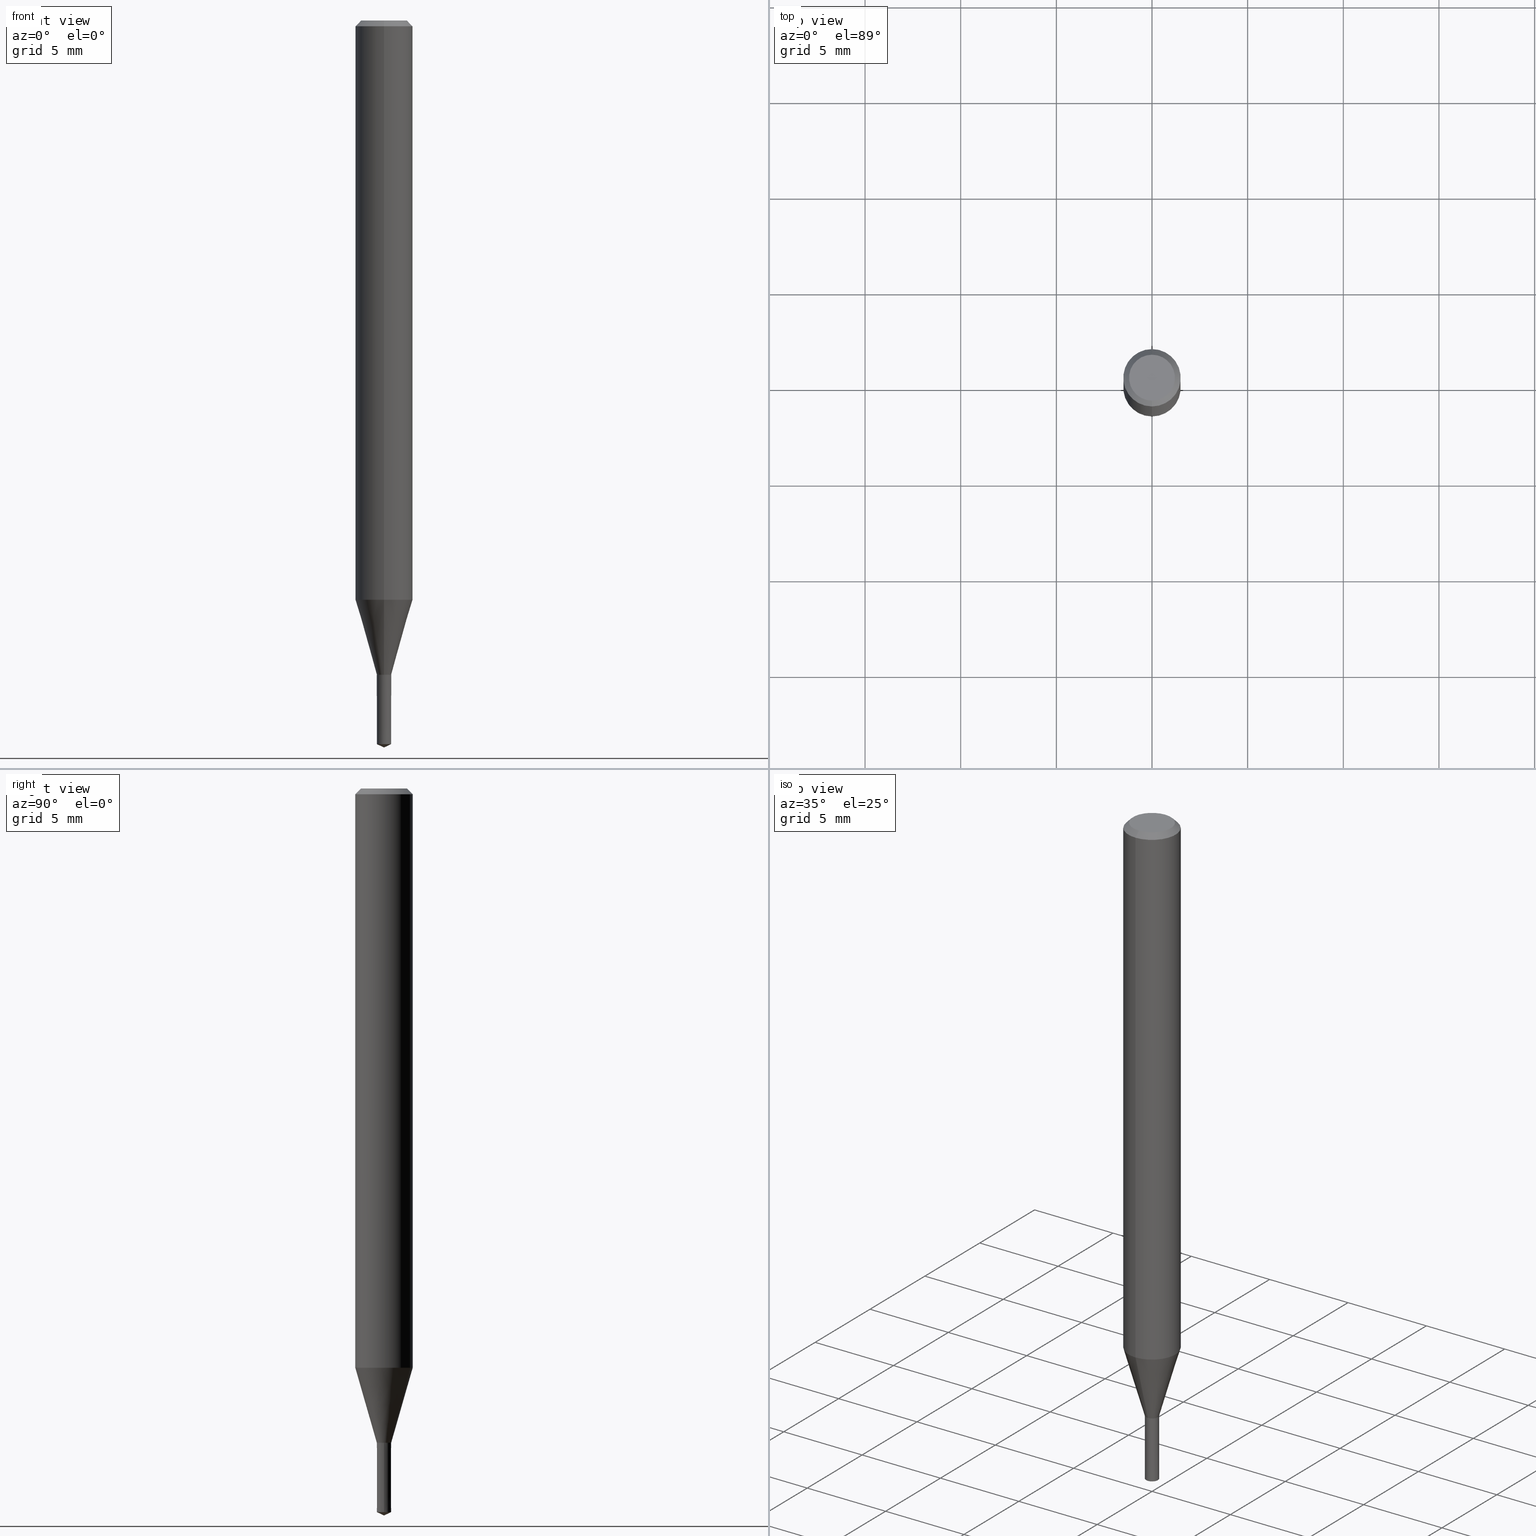
[diagram: canonical four-view strip — front | top / right | iso, engineering-drawing reading convention]
A machine part, canonical four-view strip (front | top / right | iso — engineering-drawing reading convention). The complete STEP part file that produces these views, byte-faithful:
ISO-10303-21;
HEADER;
FILE_DESCRIPTION(('no description'),'unknown implementation level');
FILE_NAME('UTDSX2075-038-Huellk.stp','  ',('CIMSOURCE GmbH'),('CADClick - KiM GmbH - www.kimweb.de'),'unknown preprocess','ACIS','unknown authorization');
FILE_SCHEMA(('automotive_design'));
ENDSEC;
DATA;
#1=MECHANICAL_DESIGN_GEOMETRIC_PRESENTATION_REPRESENTATION(' ',(#14,#15,#16,#17,#18,#19,#20,#21,#22,#23,#24,#25,#26,#27,#28,#29,#30,#31,#32,#33,#34,#35,#36,#37,#38,#39,#40,#41,#42,#43,#44,#45,#46,#47,#48,#49,#50,#51,#52,#53,#54,#55,#56,#57,#58,#59,#60,#61,#62,#63,#64,#65,#66,#67,#68,#69,#70,#71),#10);
#2=PRODUCT_DEFINITION_CONTEXT('',#72,'design');
#3=APPLICATION_PROTOCOL_DEFINITION('INTERNATIONAL STANDARD','automotive_design',1994,#72);
#4=PRODUCT_CATEGORY_RELATIONSHIP('NONE','NONE',#73,#74);
#5=SHAPE_DEFINITION_REPRESENTATION(#75,#76);
#6=PRODUCT_DEFINITION_CONTEXT('',#77,'design');
#7=APPLICATION_PROTOCOL_DEFINITION('INTERNATIONAL STANDARD','automotive_design',1994,#77);
#8=PRODUCT_CATEGORY_RELATIONSHIP('NONE','NONE',#78,#79);
#9=SHAPE_DEFINITION_REPRESENTATION(#80,#81);
#10= (GEOMETRIC_REPRESENTATION_CONTEXT(3)GLOBAL_UNCERTAINTY_ASSIGNED_CONTEXT((#84))GLOBAL_UNIT_ASSIGNED_CONTEXT((#86,#87,#88))REPRESENTATION_CONTEXT('NONE','WORKSPACE'));
#14=STYLED_ITEM('',(#90),#91);
#15=STYLED_ITEM('',(#92),#93);
#16=STYLED_ITEM('',(#94),#95);
#17=STYLED_ITEM('',(#96),#97);
#18=STYLED_ITEM('',(#98),#99);
#19=STYLED_ITEM('',(#100),#101);
#20=STYLED_ITEM('',(#102),#103);
#21=STYLED_ITEM('',(#104),#105);
#22=STYLED_ITEM('',(#106),#107);
#23=STYLED_ITEM('',(#108),#109);
#24=STYLED_ITEM('',(#110),#111);
#25=STYLED_ITEM('',(#112),#113);
#26=STYLED_ITEM('',(#114),#115);
#27=STYLED_ITEM('',(#116),#117);
#28=STYLED_ITEM('',(#118),#119);
#29=STYLED_ITEM('',(#120),#121);
#30=STYLED_ITEM('',(#122),#123);
#31=STYLED_ITEM('',(#124),#125);
#32=STYLED_ITEM('',(#126),#127);
#33=STYLED_ITEM('',(#128),#129);
#34=STYLED_ITEM('',(#130),#131);
#35=STYLED_ITEM('',(#132),#133);
#36=STYLED_ITEM('',(#134),#135);
#37=STYLED_ITEM('',(#136),#137);
#38=STYLED_ITEM('',(#138),#139);
#39=STYLED_ITEM('',(#140),#141);
#40=STYLED_ITEM('',(#142),#143);
#41=STYLED_ITEM('',(#144),#145);
#42=STYLED_ITEM('',(#146),#147);
#43=STYLED_ITEM('',(#148),#149);
#44=STYLED_ITEM('',(#150),#151);
#45=STYLED_ITEM('',(#152),#153);
#46=STYLED_ITEM('',(#154),#155);
#47=STYLED_ITEM('',(#156),#157);
#48=STYLED_ITEM('',(#158),#159);
#49=STYLED_ITEM('',(#160),#161);
#50=STYLED_ITEM('',(#162),#163);
#51=STYLED_ITEM('',(#164),#165);
#52=STYLED_ITEM('',(#166),#167);
#53=STYLED_ITEM('',(#168),#169);
#54=STYLED_ITEM('',(#170),#171);
#55=STYLED_ITEM('',(#172),#173);
#56=STYLED_ITEM('',(#174),#175);
#57=STYLED_ITEM('',(#176),#177);
#58=STYLED_ITEM('',(#178),#179);
#59=STYLED_ITEM('',(#180),#181);
#60=STYLED_ITEM('',(#182),#183);
#61=STYLED_ITEM('',(#184),#185);
#62=STYLED_ITEM('',(#186),#187);
#63=STYLED_ITEM('',(#188),#189);
#64=STYLED_ITEM('',(#190),#191);
#65=STYLED_ITEM('',(#192),#193);
#66=STYLED_ITEM('',(#194),#195);
#67=STYLED_ITEM('',(#196),#197);
#68=STYLED_ITEM('',(#198),#199);
#69=STYLED_ITEM('',(#200),#201);
#70=STYLED_ITEM('',(#202),#203);
#71=STYLED_ITEM('',(#204),#205);
#72=APPLICATION_CONTEXT(' ');
#73=PRODUCT_CATEGORY('part','NONE');
#74=PRODUCT_RELATED_PRODUCT_CATEGORY('detail',' ',(#206));
#75=PRODUCT_DEFINITION_SHAPE('NONE','NONE',#207);
#76=ADVANCED_BREP_SHAPE_REPRESENTATION('1',(#155,#208),#10);
#77=APPLICATION_CONTEXT(' ');
#78=PRODUCT_CATEGORY('part','NONE');
#79=PRODUCT_RELATED_PRODUCT_CATEGORY('detail',' ',(#209));
#80=PRODUCT_DEFINITION_SHAPE('NONE','NONE',#210);
#81=ADVANCED_BREP_SHAPE_REPRESENTATION('2',(#97,#211),#10);
#84=UNCERTAINTY_MEASURE_WITH_UNIT(LENGTH_MEASURE(1.0E-006),#86,'','');
#86= (CONVERSION_BASED_UNIT('MILLIMETRE',#214)LENGTH_UNIT()NAMED_UNIT(#217));
#87= (NAMED_UNIT(#219)PLANE_ANGLE_UNIT()SI_UNIT($,.RADIAN.));
#88= (NAMED_UNIT(#219)SOLID_ANGLE_UNIT()SI_UNIT($,.STERADIAN.));
#90=PRESENTATION_STYLE_ASSIGNMENT((#225));
#91=ADVANCED_FACE('',(#226),#227,.T.);
#92=PRESENTATION_STYLE_ASSIGNMENT((#228));
#93=ADVANCED_FACE('',(#229),#230,.T.);
#94=PRESENTATION_STYLE_ASSIGNMENT((#231));
#95=EDGE_CURVE('',#197,#195,#232,.T.);
#96=PRESENTATION_STYLE_ASSIGNMENT((#233));
#97=MANIFOLD_SOLID_BREP('2',#234);
#98=PRESENTATION_STYLE_ASSIGNMENT((#235));
#99=EDGE_CURVE('',#103,#169,#236,.T.);
#100=PRESENTATION_STYLE_ASSIGNMENT((#237));
#101=ADVANCED_FACE('',(#238),#239,.T.);
#102=PRESENTATION_STYLE_ASSIGNMENT((#240));
#103=VERTEX_POINT('',#241);
#104=PRESENTATION_STYLE_ASSIGNMENT((#242));
#105=ADVANCED_FACE('',(#243),#244,.T.);
#106=PRESENTATION_STYLE_ASSIGNMENT((#245));
#107=EDGE_CURVE('',#191,#127,#246,.T.);
#108=PRESENTATION_STYLE_ASSIGNMENT((#247));
#109=EDGE_CURVE('',#185,#145,#248,.T.);
#110=PRESENTATION_STYLE_ASSIGNMENT((#249));
#111=EDGE_CURVE('',#119,#131,#250,.T.);
#112=PRESENTATION_STYLE_ASSIGNMENT((#251));
#113=VERTEX_POINT('',#252);
#114=PRESENTATION_STYLE_ASSIGNMENT((#253));
#115=ADVANCED_FACE('',(#254),#255,.T.);
#116=PRESENTATION_STYLE_ASSIGNMENT((#256));
#117=EDGE_CURVE('',#131,#191,#257,.T.);
#118=PRESENTATION_STYLE_ASSIGNMENT((#258));
#119=VERTEX_POINT('',#259);
#120=PRESENTATION_STYLE_ASSIGNMENT((#260));
#121=EDGE_CURVE('',#197,#113,#261,.T.);
#122=PRESENTATION_STYLE_ASSIGNMENT((#262));
#123=VERTEX_POINT('',#263);
#124=PRESENTATION_STYLE_ASSIGNMENT((#264));
#125=EDGE_CURVE('',#127,#119,#265,.T.);
#126=PRESENTATION_STYLE_ASSIGNMENT((#266));
#127=VERTEX_POINT('',#267);
#128=PRESENTATION_STYLE_ASSIGNMENT((#268));
#129=EDGE_CURVE('',#123,#165,#269,.T.);
#130=PRESENTATION_STYLE_ASSIGNMENT((#270));
#131=VERTEX_POINT('',#271);
#132=PRESENTATION_STYLE_ASSIGNMENT((#272));
#133=ADVANCED_FACE('',(#273),#274,.T.);
#134=PRESENTATION_STYLE_ASSIGNMENT((#275));
#135=EDGE_CURVE('',#145,#197,#276,.T.);
#136=PRESENTATION_STYLE_ASSIGNMENT((#277));
#137=ADVANCED_FACE('',(#278),#279,.T.);
#138=PRESENTATION_STYLE_ASSIGNMENT((#280));
#139=ADVANCED_FACE('',(#281),#282,.T.);
#140=PRESENTATION_STYLE_ASSIGNMENT((#283));
#141=VERTEX_POINT('',#284);
#142=PRESENTATION_STYLE_ASSIGNMENT((#285));
#143=EDGE_CURVE('',#169,#103,#286,.T.);
#144=PRESENTATION_STYLE_ASSIGNMENT((#287));
#145=VERTEX_POINT('',#288);
#146=PRESENTATION_STYLE_ASSIGNMENT((#289));
#147=ADVANCED_FACE('',(#290),#291,.T.);
#148=PRESENTATION_STYLE_ASSIGNMENT((#292));
#149=ADVANCED_FACE('',(#293),#294,.T.);
#150=PRESENTATION_STYLE_ASSIGNMENT((#295));
#151=ADVANCED_FACE('',(#296),#297,.T.);
#152=PRESENTATION_STYLE_ASSIGNMENT((#298));
#153=EDGE_CURVE('',#103,#119,#299,.T.);
#154=PRESENTATION_STYLE_ASSIGNMENT((#300));
#155=MANIFOLD_SOLID_BREP('1',#301);
#156=PRESENTATION_STYLE_ASSIGNMENT((#302));
#157=EDGE_CURVE('',#191,#131,#303,.T.);
#158=PRESENTATION_STYLE_ASSIGNMENT((#304));
#159=EDGE_CURVE('',#127,#169,#305,.T.);
#160=PRESENTATION_STYLE_ASSIGNMENT((#306));
#161=EDGE_CURVE('',#203,#141,#307,.T.);
#162=PRESENTATION_STYLE_ASSIGNMENT((#308));
#163=EDGE_CURVE('',#123,#203,#309,.T.);
#164=PRESENTATION_STYLE_ASSIGNMENT((#310));
#165=VERTEX_POINT('',#311);
#166=PRESENTATION_STYLE_ASSIGNMENT((#312));
#167=EDGE_CURVE('',#165,#123,#313,.T.);
#168=PRESENTATION_STYLE_ASSIGNMENT((#314));
#169=VERTEX_POINT('',#315);
#170=PRESENTATION_STYLE_ASSIGNMENT((#316));
#171=EDGE_CURVE('',#145,#185,#317,.T.);
#172=PRESENTATION_STYLE_ASSIGNMENT((#318));
#173=EDGE_CURVE('',#113,#195,#319,.T.);
#174=PRESENTATION_STYLE_ASSIGNMENT((#320));
#175=EDGE_CURVE('',#195,#197,#321,.T.);
#176=PRESENTATION_STYLE_ASSIGNMENT((#322));
#177=EDGE_CURVE('',#203,#103,#323,.T.);
#178=PRESENTATION_STYLE_ASSIGNMENT((#324));
#179=ADVANCED_FACE('',(#325),#326,.T.);
#180=PRESENTATION_STYLE_ASSIGNMENT((#327));
#181=EDGE_CURVE('',#119,#127,#328,.T.);
#182=PRESENTATION_STYLE_ASSIGNMENT((#329));
#183=ADVANCED_FACE('',(#330),#331,.T.);
#184=PRESENTATION_STYLE_ASSIGNMENT((#332));
#185=VERTEX_POINT('',#333);
#186=PRESENTATION_STYLE_ASSIGNMENT((#334));
#187=EDGE_CURVE('',#169,#141,#335,.T.);
#188=PRESENTATION_STYLE_ASSIGNMENT((#336));
#189=EDGE_CURVE('',#141,#165,#337,.T.);
#190=PRESENTATION_STYLE_ASSIGNMENT((#338));
#191=VERTEX_POINT('',#339);
#192=PRESENTATION_STYLE_ASSIGNMENT((#340));
#193=EDGE_CURVE('',#141,#203,#341,.T.);
#194=PRESENTATION_STYLE_ASSIGNMENT((#342));
#195=VERTEX_POINT('',#343);
#196=PRESENTATION_STYLE_ASSIGNMENT((#344));
#197=VERTEX_POINT('',#345);
#198=PRESENTATION_STYLE_ASSIGNMENT((#346));
#199=ADVANCED_FACE('',(#347),#348,.T.);
#200=PRESENTATION_STYLE_ASSIGNMENT((#349));
#201=ADVANCED_FACE('',(#350),#351,.T.);
#202=PRESENTATION_STYLE_ASSIGNMENT((#352));
#203=VERTEX_POINT('',#353);
#204=PRESENTATION_STYLE_ASSIGNMENT((#354));
#205=EDGE_CURVE('',#195,#185,#355,.T.);
#206=PRODUCT('1','1','PART-1-DESC',(#356));
#207=PRODUCT_DEFINITION('NONE','NONE',#357,#2);
#208=AXIS2_PLACEMENT_3D('',#358,#359,#360);
#209=PRODUCT('2','2','PART-2-DESC',(#361));
#210=PRODUCT_DEFINITION('NONE','NONE',#362,#6);
#211=AXIS2_PLACEMENT_3D('',#363,#364,#365);
#214=LENGTH_MEASURE_WITH_UNIT(LENGTH_MEASURE(1.0),#366);
#217=DIMENSIONAL_EXPONENTS(1.0,0.0,0.0,0.0,0.0,0.0,0.0);
#219=DIMENSIONAL_EXPONENTS(0.0,0.0,0.0,0.0,0.0,0.0,0.0);
#225=SURFACE_STYLE_USAGE(.BOTH.,#367);
#226=FACE_OUTER_BOUND('',#368,.T.);
#227=CYLINDRICAL_SURFACE('',#369,1.5);
#228=SURFACE_STYLE_USAGE(.BOTH.,#370);
#229=FACE_OUTER_BOUND('',#371,.T.);
#230=CONICAL_SURFACE('',#372,0.1875,1.1344640177568);
#231=CURVE_STYLE('',#373,POSITIVE_LENGTH_MEASURE(1.0E-006),#374);
#232=CIRCLE('',#375,0.375);
#233=SURFACE_STYLE_USAGE(.BOTH.,#376);
#234=CLOSED_SHELL('',(#151,#147,#149,#137,#93));
#235=CURVE_STYLE('',#377,POSITIVE_LENGTH_MEASURE(1.0E-006),#378);
#236=CIRCLE('',#379,1.5);
#237=SURFACE_STYLE_USAGE(.BOTH.,#380);
#238=FACE_OUTER_BOUND('',#381,.T.);
#239=CONICAL_SURFACE('',#382,0.9375,0.279334235816107);
#240=POINT_STYLE(' ',#383,POSITIVE_LENGTH_MEASURE(1.0E-006),#384);
#241=CARTESIAN_POINT('',(0.0,1.5,-30.277));
#242=SURFACE_STYLE_USAGE(.BOTH.,#385);
#243=FACE_OUTER_BOUND('',#386,.T.);
#244=CYLINDRICAL_SURFACE('',#387,1.5);
#245=CURVE_STYLE('',#388,POSITIVE_LENGTH_MEASURE(1.0E-006),#389);
#246=LINE('',#390,#391);
#247=CURVE_STYLE('',#392,POSITIVE_LENGTH_MEASURE(1.0E-006),#393);
#248=CIRCLE('',#394,0.376);
#249=CURVE_STYLE('',#395,POSITIVE_LENGTH_MEASURE(1.0E-006),#396);
#250=LINE('',#397,#398);
#251=POINT_STYLE(' ',#399,POSITIVE_LENGTH_MEASURE(1.0E-006),#400);
#252=CARTESIAN_POINT('',(0.0,0.0,-38.0));
#253=SURFACE_STYLE_USAGE(.BOTH.,#401);
#254=FACE_OUTER_BOUND('',#402,.T.);
#255=PLANE('',#403);
#256=CURVE_STYLE('',#404,POSITIVE_LENGTH_MEASURE(1.0E-006),#405);
#257=CIRCLE('',#406,0.3755);
#258=POINT_STYLE(' ',#407,POSITIVE_LENGTH_MEASURE(1.0E-006),#408);
#259=CARTESIAN_POINT('',(0.0,0.375,-34.1991339745962));
#260=CURVE_STYLE('',#409,POSITIVE_LENGTH_MEASURE(1.0E-006),#410);
#261=LINE('',#411,#412);
#262=POINT_STYLE(' ',#413,POSITIVE_LENGTH_MEASURE(1.0E-006),#414);
#263=CARTESIAN_POINT('',(0.0,1.2,0.0));
#264=CURVE_STYLE('',#415,POSITIVE_LENGTH_MEASURE(1.0E-006),#416);
#265=CIRCLE('',#417,0.375);
#266=POINT_STYLE(' ',#418,POSITIVE_LENGTH_MEASURE(1.0E-006),#419);
#267=CARTESIAN_POINT('',(4.59227382683391E-017,-0.375,-34.1991339745962));
#268=CURVE_STYLE('',#420,POSITIVE_LENGTH_MEASURE(1.0E-006),#421);
#269=CIRCLE('',#422,1.2);
#270=POINT_STYLE(' ',#423,POSITIVE_LENGTH_MEASURE(1.0E-006),#424);
#271=CARTESIAN_POINT('',(0.0,0.3755,-34.2));
#272=SURFACE_STYLE_USAGE(.BOTH.,#425);
#273=FACE_OUTER_BOUND('',#426,.T.);
#274=CONICAL_SURFACE('',#427,0.37525,0.523598775598408);
#275=CURVE_STYLE('',#428,POSITIVE_LENGTH_MEASURE(1.0E-006),#429);
#276=LINE('',#430,#431);
#277=SURFACE_STYLE_USAGE(.BOTH.,#432);
#278=FACE_OUTER_BOUND('',#433,.T.);
#279=CONICAL_SURFACE('',#434,0.3755,0.000275851817022106);
#280=SURFACE_STYLE_USAGE(.BOTH.,#435);
#281=FACE_OUTER_BOUND('',#436,.T.);
#282=CONICAL_SURFACE('',#437,1.35,0.785398163397447);
#283=POINT_STYLE(' ',#438,POSITIVE_LENGTH_MEASURE(1.0E-006),#439);
#284=CARTESIAN_POINT('',(1.83690953073357E-016,-1.5,-0.300000000000001));
#285=CURVE_STYLE('',#440,POSITIVE_LENGTH_MEASURE(1.0E-006),#441);
#286=CIRCLE('',#442,1.5);
#287=POINT_STYLE(' ',#443,POSITIVE_LENGTH_MEASURE(1.0E-006),#444);
#288=CARTESIAN_POINT('',(-0.376,0.0,-34.2));
#289=SURFACE_STYLE_USAGE(.BOTH.,#445);
#290=FACE_OUTER_BOUND('',#446,.T.);
#291=CONICAL_SURFACE('',#447,0.3755,0.000275851817022106);
#292=SURFACE_STYLE_USAGE(.BOTH.,#448);
#293=FACE_OUTER_BOUND('',#449,.T.);
#294=PLANE('',#450);
#295=SURFACE_STYLE_USAGE(.BOTH.,#451);
#296=FACE_OUTER_BOUND('',#452,.T.);
#297=CONICAL_SURFACE('',#453,0.1875,1.1344640177568);
#298=CURVE_STYLE('',#454,POSITIVE_LENGTH_MEASURE(1.0E-006),#455);
#299=LINE('',#456,#457);
#300=SURFACE_STYLE_USAGE(.BOTH.,#458);
#301=CLOSED_SHELL('',(#179,#183,#105,#199,#201,#139,#91,#101,#133,#115));
#302=CURVE_STYLE('',#459,POSITIVE_LENGTH_MEASURE(1.0E-006),#460);
#303=CIRCLE('',#461,0.3755);
#304=CURVE_STYLE('',#462,POSITIVE_LENGTH_MEASURE(1.0E-006),#463);
#305=LINE('',#464,#465);
#306=CURVE_STYLE('',#466,POSITIVE_LENGTH_MEASURE(1.0E-006),#467);
#307=CIRCLE('',#468,1.5);
#308=CURVE_STYLE('',#469,POSITIVE_LENGTH_MEASURE(1.0E-006),#470);
#309=LINE('',#471,#472);
#310=POINT_STYLE(' ',#473,POSITIVE_LENGTH_MEASURE(1.0E-006),#474);
#311=CARTESIAN_POINT('',(1.46952762458685E-016,-1.2,0.0));
#312=CURVE_STYLE('',#475,POSITIVE_LENGTH_MEASURE(1.0E-006),#476);
#313=CIRCLE('',#477,1.2);
#314=POINT_STYLE(' ',#478,POSITIVE_LENGTH_MEASURE(1.0E-006),#479);
#315=CARTESIAN_POINT('',(1.83690953073357E-016,-1.5,-30.277));
#316=CURVE_STYLE('',#480,POSITIVE_LENGTH_MEASURE(1.0E-006),#481);
#317=CIRCLE('',#482,0.376);
#318=CURVE_STYLE('',#483,POSITIVE_LENGTH_MEASURE(1.0E-006),#484);
#319=LINE('',#485,#486);
#320=CURVE_STYLE('',#487,POSITIVE_LENGTH_MEASURE(1.0E-006),#488);
#321=CIRCLE('',#489,0.375);
#322=CURVE_STYLE('',#490,POSITIVE_LENGTH_MEASURE(1.0E-006),#491);
#323=LINE('',#492,#493);
#324=SURFACE_STYLE_USAGE(.BOTH.,#494);
#325=FACE_OUTER_BOUND('',#495,.T.);
#326=CONICAL_SURFACE('',#496,0.37525,0.523598775598408);
#327=CURVE_STYLE('',#497,POSITIVE_LENGTH_MEASURE(1.0E-006),#498);
#328=CIRCLE('',#499,0.375);
#329=SURFACE_STYLE_USAGE(.BOTH.,#500);
#330=FACE_OUTER_BOUND('',#501,.T.);
#331=CONICAL_SURFACE('',#502,0.9375,0.279334235816107);
#332=POINT_STYLE(' ',#503,POSITIVE_LENGTH_MEASURE(1.0E-006),#504);
#333=CARTESIAN_POINT('',(0.376,4.60451989037214E-017,-34.2));
#334=CURVE_STYLE('',#505,POSITIVE_LENGTH_MEASURE(1.0E-006),#506);
#335=LINE('',#507,#508);
#336=CURVE_STYLE('',#509,POSITIVE_LENGTH_MEASURE(1.0E-006),#510);
#337=LINE('',#511,#512);
#338=POINT_STYLE(' ',#513,POSITIVE_LENGTH_MEASURE(1.0E-006),#514);
#339=CARTESIAN_POINT('',(4.59839685860303E-017,-0.3755,-34.2));
#340=CURVE_STYLE('',#515,POSITIVE_LENGTH_MEASURE(1.0E-006),#516);
#341=CIRCLE('',#517,1.5);
#342=POINT_STYLE(' ',#518,POSITIVE_LENGTH_MEASURE(1.0E-006),#519);
#343=CARTESIAN_POINT('',(0.375,4.59227382683391E-017,-37.82513463));
#344=POINT_STYLE(' ',#520,POSITIVE_LENGTH_MEASURE(1.0E-006),#521);
#345=CARTESIAN_POINT('',(-0.375,0.0,-37.82513463));
#346=SURFACE_STYLE_USAGE(.BOTH.,#522);
#347=FACE_OUTER_BOUND('',#523,.T.);
#348=CONICAL_SURFACE('',#524,1.35,0.785398163397447);
#349=SURFACE_STYLE_USAGE(.BOTH.,#525);
#350=FACE_OUTER_BOUND('',#526,.T.);
#351=PLANE('',#527);
#352=POINT_STYLE(' ',#528,POSITIVE_LENGTH_MEASURE(1.0E-006),#529);
#353=CARTESIAN_POINT('',(0.0,1.5,-0.300000000000001));
#354=CURVE_STYLE('',#530,POSITIVE_LENGTH_MEASURE(1.0E-006),#531);
#355=LINE('',#532,#533);
#356=PRODUCT_CONTEXT('',#72,'mechanical');
#357=PRODUCT_DEFINITION_FORMATION_WITH_SPECIFIED_SOURCE(' ','NONE',#206,.NOT_KNOWN.);
#358=CARTESIAN_POINT('',(0.0,0.0,0.0));
#359=DIRECTION('',(0.0,0.0,1.0));
#360=DIRECTION('',(1.0,0.0,0.0));
#361=PRODUCT_CONTEXT('',#77,'mechanical');
#362=PRODUCT_DEFINITION_FORMATION_WITH_SPECIFIED_SOURCE(' ','NONE',#209,.NOT_KNOWN.);
#363=CARTESIAN_POINT('',(0.0,0.0,0.0));
#364=DIRECTION('',(0.0,0.0,1.0));
#365=DIRECTION('',(1.0,0.0,0.0));
#366= (NAMED_UNIT(#217)LENGTH_UNIT()SI_UNIT(.MILLI.,.METRE.));
#367=SURFACE_SIDE_STYLE('',(#535));
#368=EDGE_LOOP('',(#536,#537,#538,#539));
#369=AXIS2_PLACEMENT_3D('',#540,#541,#542);
#370=SURFACE_SIDE_STYLE('',(#543));
#371=EDGE_LOOP('',(#544,#545,#546));
#372=AXIS2_PLACEMENT_3D('',#547,#548,#549);
#373=DRAUGHTING_PRE_DEFINED_CURVE_FONT('continuous');
#374=COLOUR_RGB('',0.800000011920929,0.800000011920929,0.800000011920929);
#375=AXIS2_PLACEMENT_3D('',#550,#551,#552);
#376=SURFACE_SIDE_STYLE('',(#553));
#377=DRAUGHTING_PRE_DEFINED_CURVE_FONT('continuous');
#378=COLOUR_RGB('',0.498039215803146,0.498039215803146,0.498039215803146);
#379=AXIS2_PLACEMENT_3D('',#554,#555,#556);
#380=SURFACE_SIDE_STYLE('',(#557));
#381=EDGE_LOOP('',(#558,#559,#560,#561));
#382=AXIS2_PLACEMENT_3D('',#562,#563,#564);
#383=PRE_DEFINED_MARKER('');
#384=COLOUR_RGB('',0.498039215803146,0.498039215803146,0.498039215803146);
#385=SURFACE_SIDE_STYLE('',(#565));
#386=EDGE_LOOP('',(#566,#567,#568,#569));
#387=AXIS2_PLACEMENT_3D('',#570,#571,#572);
#388=DRAUGHTING_PRE_DEFINED_CURVE_FONT('continuous');
#389=COLOUR_RGB('',0.498039215803146,0.498039215803146,0.498039215803146);
#390=CARTESIAN_POINT('',(4.59533534271847E-017,-0.37525,-34.1995669872981));
#391=VECTOR('',#573,1.0);
#392=DRAUGHTING_PRE_DEFINED_CURVE_FONT('continuous');
#393=COLOUR_RGB('',0.800000011920929,0.800000011920929,0.800000011920929);
#394=AXIS2_PLACEMENT_3D('',#574,#575,#576);
#395=DRAUGHTING_PRE_DEFINED_CURVE_FONT('continuous');
#396=COLOUR_RGB('',0.498039215803146,0.498039215803146,0.498039215803146);
#397=CARTESIAN_POINT('',(-4.59533534271847E-017,0.37525,-34.1995669872981));
#398=VECTOR('',#577,1.0);
#399=PRE_DEFINED_MARKER('');
#400=COLOUR_RGB('',0.800000011920929,0.800000011920929,0.800000011920929);
#401=SURFACE_SIDE_STYLE('',(#578));
#402=EDGE_LOOP('',(#579,#580));
#403=AXIS2_PLACEMENT_3D('',#581,#582,#583);
#404=DRAUGHTING_PRE_DEFINED_CURVE_FONT('continuous');
#405=COLOUR_RGB('',0.498039215803146,0.498039215803146,0.498039215803146);
#406=AXIS2_PLACEMENT_3D('',#584,#585,#586);
#407=PRE_DEFINED_MARKER('');
#408=COLOUR_RGB('',0.498039215803146,0.498039215803146,0.498039215803146);
#409=DRAUGHTING_PRE_DEFINED_CURVE_FONT('continuous');
#410=COLOUR_RGB('',0.800000011920929,0.800000011920929,0.800000011920929);
#411=CARTESIAN_POINT('',(-0.1875,-2.29613691341696E-017,-37.912567315));
#412=VECTOR('',#587,1.0);
#413=PRE_DEFINED_MARKER('');
#414=COLOUR_RGB('',0.498039215803146,0.498039215803146,0.498039215803146);
#415=DRAUGHTING_PRE_DEFINED_CURVE_FONT('continuous');
#416=COLOUR_RGB('',0.498039215803146,0.498039215803146,0.498039215803146);
#417=AXIS2_PLACEMENT_3D('',#588,#589,#590);
#418=PRE_DEFINED_MARKER('');
#419=COLOUR_RGB('',0.498039215803146,0.498039215803146,0.498039215803146);
#420=DRAUGHTING_PRE_DEFINED_CURVE_FONT('continuous');
#421=COLOUR_RGB('',0.498039215803146,0.498039215803146,0.498039215803146);
#422=AXIS2_PLACEMENT_3D('',#591,#592,#593);
#423=PRE_DEFINED_MARKER('');
#424=COLOUR_RGB('',0.498039215803146,0.498039215803146,0.498039215803146);
#425=SURFACE_SIDE_STYLE('',(#594));
#426=EDGE_LOOP('',(#595,#596,#597,#598));
#427=AXIS2_PLACEMENT_3D('',#599,#600,#601);
#428=DRAUGHTING_PRE_DEFINED_CURVE_FONT('continuous');
#429=COLOUR_RGB('',0.800000011920929,0.800000011920929,0.800000011920929);
#430=CARTESIAN_POINT('',(-0.3755,-4.59839685860302E-017,-36.012567315));
#431=VECTOR('',#602,1.0);
#432=SURFACE_SIDE_STYLE('',(#603));
#433=EDGE_LOOP('',(#604,#605,#606,#607));
#434=AXIS2_PLACEMENT_3D('',#608,#609,#610);
#435=SURFACE_SIDE_STYLE('',(#611));
#436=EDGE_LOOP('',(#612,#613,#614,#615));
#437=AXIS2_PLACEMENT_3D('',#616,#617,#618);
#438=PRE_DEFINED_MARKER('');
#439=COLOUR_RGB('',0.498039215803146,0.498039215803146,0.498039215803146);
#440=DRAUGHTING_PRE_DEFINED_CURVE_FONT('continuous');
#441=COLOUR_RGB('',0.498039215803146,0.498039215803146,0.498039215803146);
#442=AXIS2_PLACEMENT_3D('',#619,#620,#621);
#443=PRE_DEFINED_MARKER('');
#444=COLOUR_RGB('',0.800000011920929,0.800000011920929,0.800000011920929);
#445=SURFACE_SIDE_STYLE('',(#622));
#446=EDGE_LOOP('',(#623,#624,#625,#626));
#447=AXIS2_PLACEMENT_3D('',#627,#628,#629);
#448=SURFACE_SIDE_STYLE('',(#630));
#449=EDGE_LOOP('',(#631,#632));
#450=AXIS2_PLACEMENT_3D('',#633,#634,#635);
#451=SURFACE_SIDE_STYLE('',(#636));
#452=EDGE_LOOP('',(#637,#638,#639));
#453=AXIS2_PLACEMENT_3D('',#640,#641,#642);
#454=DRAUGHTING_PRE_DEFINED_CURVE_FONT('continuous');
#455=COLOUR_RGB('',0.498039215803146,0.498039215803146,0.498039215803146);
#456=CARTESIAN_POINT('',(-1.14806845670848E-016,0.9375,-32.2380669872981));
#457=VECTOR('',#643,1.0);
#458=SURFACE_SIDE_STYLE('',(#644));
#459=DRAUGHTING_PRE_DEFINED_CURVE_FONT('continuous');
#460=COLOUR_RGB('',0.498039215803146,0.498039215803146,0.498039215803146);
#461=AXIS2_PLACEMENT_3D('',#645,#646,#647);
#462=DRAUGHTING_PRE_DEFINED_CURVE_FONT('continuous');
#463=COLOUR_RGB('',0.498039215803146,0.498039215803146,0.498039215803146);
#464=CARTESIAN_POINT('',(1.14806845670848E-016,-0.9375,-32.2380669872981));
#465=VECTOR('',#648,1.0);
#466=DRAUGHTING_PRE_DEFINED_CURVE_FONT('continuous');
#467=COLOUR_RGB('',0.498039215803146,0.498039215803146,0.498039215803146);
#468=AXIS2_PLACEMENT_3D('',#649,#650,#651);
#469=DRAUGHTING_PRE_DEFINED_CURVE_FONT('continuous');
#470=COLOUR_RGB('',0.498039215803146,0.498039215803146,0.498039215803146);
#471=CARTESIAN_POINT('',(-1.65321857766021E-016,1.35,-0.149999999999999));
#472=VECTOR('',#652,1.0);
#473=PRE_DEFINED_MARKER('');
#474=COLOUR_RGB('',0.498039215803146,0.498039215803146,0.498039215803146);
#475=DRAUGHTING_PRE_DEFINED_CURVE_FONT('continuous');
#476=COLOUR_RGB('',0.498039215803146,0.498039215803146,0.498039215803146);
#477=AXIS2_PLACEMENT_3D('',#653,#654,#655);
#478=PRE_DEFINED_MARKER('');
#479=COLOUR_RGB('',0.498039215803146,0.498039215803146,0.498039215803146);
#480=DRAUGHTING_PRE_DEFINED_CURVE_FONT('continuous');
#481=COLOUR_RGB('',0.800000011920929,0.800000011920929,0.800000011920929);
#482=AXIS2_PLACEMENT_3D('',#656,#657,#658);
#483=DRAUGHTING_PRE_DEFINED_CURVE_FONT('continuous');
#484=COLOUR_RGB('',0.800000011920929,0.800000011920929,0.800000011920929);
#485=CARTESIAN_POINT('',(0.1875,2.29613691341696E-017,-37.912567315));
#486=VECTOR('',#659,1.0);
#487=DRAUGHTING_PRE_DEFINED_CURVE_FONT('continuous');
#488=COLOUR_RGB('',0.800000011920929,0.800000011920929,0.800000011920929);
#489=AXIS2_PLACEMENT_3D('',#660,#661,#662);
#490=DRAUGHTING_PRE_DEFINED_CURVE_FONT('continuous');
#491=COLOUR_RGB('',0.498039215803146,0.498039215803146,0.498039215803146);
#492=CARTESIAN_POINT('',(-1.83690953073357E-016,1.5,-15.2885));
#493=VECTOR('',#663,1.0);
#494=SURFACE_SIDE_STYLE('',(#664));
#495=EDGE_LOOP('',(#665,#666,#667,#668));
#496=AXIS2_PLACEMENT_3D('',#669,#670,#671);
#497=DRAUGHTING_PRE_DEFINED_CURVE_FONT('continuous');
#498=COLOUR_RGB('',0.498039215803146,0.498039215803146,0.498039215803146);
#499=AXIS2_PLACEMENT_3D('',#672,#673,#674);
#500=SURFACE_SIDE_STYLE('',(#675));
#501=EDGE_LOOP('',(#676,#677,#678,#679));
#502=AXIS2_PLACEMENT_3D('',#680,#681,#682);
#503=PRE_DEFINED_MARKER('');
#504=COLOUR_RGB('',0.800000011920929,0.800000011920929,0.800000011920929);
#505=DRAUGHTING_PRE_DEFINED_CURVE_FONT('continuous');
#506=COLOUR_RGB('',0.498039215803146,0.498039215803146,0.498039215803146);
#507=CARTESIAN_POINT('',(1.83690953073357E-016,-1.5,-15.2885));
#508=VECTOR('',#683,1.0);
#509=DRAUGHTING_PRE_DEFINED_CURVE_FONT('continuous');
#510=COLOUR_RGB('',0.498039215803146,0.498039215803146,0.498039215803146);
#511=CARTESIAN_POINT('',(1.65321857766021E-016,-1.35,-0.149999999999999));
#512=VECTOR('',#684,1.0);
#513=PRE_DEFINED_MARKER('');
#514=COLOUR_RGB('',0.498039215803146,0.498039215803146,0.498039215803146);
#515=DRAUGHTING_PRE_DEFINED_CURVE_FONT('continuous');
#516=COLOUR_RGB('',0.498039215803146,0.498039215803146,0.498039215803146);
#517=AXIS2_PLACEMENT_3D('',#685,#686,#687);
#518=PRE_DEFINED_MARKER('');
#519=COLOUR_RGB('',0.800000011920929,0.800000011920929,0.800000011920929);
#520=PRE_DEFINED_MARKER('');
#521=COLOUR_RGB('',0.800000011920929,0.800000011920929,0.800000011920929);
#522=SURFACE_SIDE_STYLE('',(#688));
#523=EDGE_LOOP('',(#689,#690,#691,#692));
#524=AXIS2_PLACEMENT_3D('',#693,#694,#695);
#525=SURFACE_SIDE_STYLE('',(#696));
#526=EDGE_LOOP('',(#697,#698));
#527=AXIS2_PLACEMENT_3D('',#699,#700,#701);
#528=PRE_DEFINED_MARKER('');
#529=COLOUR_RGB('',0.498039215803146,0.498039215803146,0.498039215803146);
#530=DRAUGHTING_PRE_DEFINED_CURVE_FONT('continuous');
#531=COLOUR_RGB('',0.800000011920929,0.800000011920929,0.800000011920929);
#532=CARTESIAN_POINT('',(0.3755,4.59839685860303E-017,-36.012567315));
#533=VECTOR('',#702,1.0);
#535=SURFACE_STYLE_FILL_AREA(#703);
#536=ORIENTED_EDGE('',*,*,#177,.T.);
#537=ORIENTED_EDGE('',*,*,#143,.F.);
#538=ORIENTED_EDGE('',*,*,#187,.T.);
#539=ORIENTED_EDGE('',*,*,#193,.T.);
#540=CARTESIAN_POINT('',(0.0,0.0,-15.2885));
#541=DIRECTION('',(-0.0,-0.0,1.0));
#542=DIRECTION('',(0.0,1.0,0.0));
#543=SURFACE_STYLE_FILL_AREA(#704);
#544=ORIENTED_EDGE('',*,*,#173,.T.);
#545=ORIENTED_EDGE('',*,*,#175,.T.);
#546=ORIENTED_EDGE('',*,*,#121,.T.);
#547=CARTESIAN_POINT('',(0.0,0.0,-37.912567315));
#548=DIRECTION('',(-0.0,-0.0,1.0));
#549=DIRECTION('',(-1.0,0.0,0.0));
#550=CARTESIAN_POINT('',(0.0,0.0,-37.82513463));
#551=DIRECTION('',(0.0,0.0,-1.0));
#552=DIRECTION('',(-1.0,0.0,0.0));
#553=SURFACE_STYLE_FILL_AREA(#705);
#554=CARTESIAN_POINT('',(0.0,0.0,-30.277));
#555=DIRECTION('',(0.0,0.0,-1.0));
#556=DIRECTION('',(0.0,1.0,0.0));
#557=SURFACE_STYLE_FILL_AREA(#706);
#558=ORIENTED_EDGE('',*,*,#153,.T.);
#559=ORIENTED_EDGE('',*,*,#125,.F.);
#560=ORIENTED_EDGE('',*,*,#159,.T.);
#561=ORIENTED_EDGE('',*,*,#143,.T.);
#562=CARTESIAN_POINT('',(0.0,0.0,-32.2380669872981));
#563=DIRECTION('',(-0.0,-0.0,1.0));
#564=DIRECTION('',(0.0,1.0,0.0));
#565=SURFACE_STYLE_FILL_AREA(#707);
#566=ORIENTED_EDGE('',*,*,#177,.F.);
#567=ORIENTED_EDGE('',*,*,#161,.T.);
#568=ORIENTED_EDGE('',*,*,#187,.F.);
#569=ORIENTED_EDGE('',*,*,#99,.F.);
#570=CARTESIAN_POINT('',(0.0,0.0,-15.2885));
#571=DIRECTION('',(-0.0,-0.0,1.0));
#572=DIRECTION('',(0.0,1.0,0.0));
#573=DIRECTION('',(-6.12303176911304E-017,0.500000000000095,0.866025403784384));
#574=CARTESIAN_POINT('',(0.0,0.0,-34.2));
#575=DIRECTION('',(0.0,0.0,-1.0));
#576=DIRECTION('',(-1.0,0.0,0.0));
#577=DIRECTION('',(-6.12303176911305E-017,0.500000000000095,-0.866025403784384));
#578=SURFACE_STYLE_FILL_AREA(#708);
#579=ORIENTED_EDGE('',*,*,#117,.T.);
#580=ORIENTED_EDGE('',*,*,#157,.T.);
#581=CARTESIAN_POINT('',(0.0,0.18775,-34.2));
#582=DIRECTION('',(0.0,0.0,-1.0));
#583=DIRECTION('',(0.0,1.0,0.0));
#584=CARTESIAN_POINT('',(0.0,0.0,-34.2));
#585=DIRECTION('',(0.0,0.0,-1.0));
#586=DIRECTION('',(0.0,1.0,0.0));
#587=DIRECTION('',(0.906307788710424,1.10987027657349E-016,-0.42261825815128));
#588=CARTESIAN_POINT('',(0.0,0.0,-34.1991339745962));
#589=DIRECTION('',(0.0,0.0,-1.0));
#590=DIRECTION('',(0.0,1.0,0.0));
#591=CARTESIAN_POINT('',(0.0,0.0,0.0));
#592=DIRECTION('',(0.0,0.0,-1.0));
#593=DIRECTION('',(0.0,1.0,0.0));
#594=SURFACE_STYLE_FILL_AREA(#709);
#595=ORIENTED_EDGE('',*,*,#111,.T.);
#596=ORIENTED_EDGE('',*,*,#157,.F.);
#597=ORIENTED_EDGE('',*,*,#107,.T.);
#598=ORIENTED_EDGE('',*,*,#125,.T.);
#599=CARTESIAN_POINT('',(0.0,0.0,-34.1995669872981));
#600=DIRECTION('',(0.0,-0.0,-1.0));
#601=DIRECTION('',(0.0,1.0,0.0));
#602=DIRECTION('',(0.000275851813523651,3.37809883554488E-020,-0.999999961952888));
#603=SURFACE_STYLE_FILL_AREA(#710);
#604=ORIENTED_EDGE('',*,*,#135,.T.);
#605=ORIENTED_EDGE('',*,*,#175,.F.);
#606=ORIENTED_EDGE('',*,*,#205,.T.);
#607=ORIENTED_EDGE('',*,*,#109,.T.);
#608=CARTESIAN_POINT('',(0.0,0.0,-36.012567315));
#609=DIRECTION('',(-0.0,-0.0,1.0));
#610=DIRECTION('',(-1.0,0.0,0.0));
#611=SURFACE_STYLE_FILL_AREA(#711);
#612=ORIENTED_EDGE('',*,*,#163,.T.);
#613=ORIENTED_EDGE('',*,*,#193,.F.);
#614=ORIENTED_EDGE('',*,*,#189,.T.);
#615=ORIENTED_EDGE('',*,*,#167,.T.);
#616=CARTESIAN_POINT('',(0.0,0.0,-0.149999999999999));
#617=DIRECTION('',(0.0,-0.0,-1.0));
#618=DIRECTION('',(0.0,1.0,0.0));
#619=CARTESIAN_POINT('',(0.0,0.0,-30.277));
#620=DIRECTION('',(0.0,0.0,-1.0));
#621=DIRECTION('',(0.0,1.0,0.0));
#622=SURFACE_STYLE_FILL_AREA(#712);
#623=ORIENTED_EDGE('',*,*,#135,.F.);
#624=ORIENTED_EDGE('',*,*,#171,.T.);
#625=ORIENTED_EDGE('',*,*,#205,.F.);
#626=ORIENTED_EDGE('',*,*,#95,.F.);
#627=CARTESIAN_POINT('',(0.0,0.0,-36.012567315));
#628=DIRECTION('',(-0.0,-0.0,1.0));
#629=DIRECTION('',(-1.0,0.0,0.0));
#630=SURFACE_STYLE_FILL_AREA(#713);
#631=ORIENTED_EDGE('',*,*,#171,.F.);
#632=ORIENTED_EDGE('',*,*,#109,.F.);
#633=CARTESIAN_POINT('',(-0.188,0.0,-34.2));
#634=DIRECTION('',(0.0,0.0,1.0));
#635=DIRECTION('',(1.0,0.0,0.0));
#636=SURFACE_STYLE_FILL_AREA(#714);
#637=ORIENTED_EDGE('',*,*,#173,.F.);
#638=ORIENTED_EDGE('',*,*,#121,.F.);
#639=ORIENTED_EDGE('',*,*,#95,.T.);
#640=CARTESIAN_POINT('',(0.0,0.0,-37.912567315));
#641=DIRECTION('',(-0.0,-0.0,1.0));
#642=DIRECTION('',(-1.0,0.0,0.0));
#643=DIRECTION('',(3.37643260616104E-017,-0.275715751075612,-0.961239212999975));
#644=SURFACE_STYLE_FILL_AREA(#715);
#645=CARTESIAN_POINT('',(0.0,0.0,-34.2));
#646=DIRECTION('',(0.0,0.0,-1.0));
#647=DIRECTION('',(0.0,1.0,0.0));
#648=DIRECTION('',(3.37643260616104E-017,-0.275715751075612,0.961239212999975));
#649=CARTESIAN_POINT('',(0.0,0.0,-0.300000000000001));
#650=DIRECTION('',(0.0,0.0,-1.0));
#651=DIRECTION('',(0.0,1.0,0.0));
#652=DIRECTION('',(-8.65927457071934E-017,0.707106781186546,-0.707106781186549));
#653=CARTESIAN_POINT('',(0.0,0.0,0.0));
#654=DIRECTION('',(0.0,0.0,-1.0));
#655=DIRECTION('',(0.0,1.0,0.0));
#656=CARTESIAN_POINT('',(0.0,0.0,-34.2));
#657=DIRECTION('',(0.0,0.0,-1.0));
#658=DIRECTION('',(-1.0,0.0,0.0));
#659=DIRECTION('',(0.906307788710424,1.10987027657349E-016,0.42261825815128));
#660=CARTESIAN_POINT('',(0.0,0.0,-37.82513463));
#661=DIRECTION('',(0.0,0.0,-1.0));
#662=DIRECTION('',(-1.0,0.0,0.0));
#663=DIRECTION('',(0.0,0.0,-1.0));
#664=SURFACE_STYLE_FILL_AREA(#716);
#665=ORIENTED_EDGE('',*,*,#111,.F.);
#666=ORIENTED_EDGE('',*,*,#181,.T.);
#667=ORIENTED_EDGE('',*,*,#107,.F.);
#668=ORIENTED_EDGE('',*,*,#117,.F.);
#669=CARTESIAN_POINT('',(0.0,0.0,-34.1995669872981));
#670=DIRECTION('',(0.0,-0.0,-1.0));
#671=DIRECTION('',(0.0,1.0,0.0));
#672=CARTESIAN_POINT('',(0.0,0.0,-34.1991339745962));
#673=DIRECTION('',(0.0,0.0,-1.0));
#674=DIRECTION('',(0.0,1.0,0.0));
#675=SURFACE_STYLE_FILL_AREA(#717);
#676=ORIENTED_EDGE('',*,*,#153,.F.);
#677=ORIENTED_EDGE('',*,*,#99,.T.);
#678=ORIENTED_EDGE('',*,*,#159,.F.);
#679=ORIENTED_EDGE('',*,*,#181,.F.);
#680=CARTESIAN_POINT('',(0.0,0.0,-32.2380669872981));
#681=DIRECTION('',(-0.0,-0.0,1.0));
#682=DIRECTION('',(0.0,1.0,0.0));
#683=DIRECTION('',(-0.0,-0.0,1.0));
#684=DIRECTION('',(-8.65927457071934E-017,0.707106781186546,0.707106781186549));
#685=CARTESIAN_POINT('',(0.0,0.0,-0.300000000000001));
#686=DIRECTION('',(0.0,0.0,-1.0));
#687=DIRECTION('',(0.0,1.0,0.0));
#688=SURFACE_STYLE_FILL_AREA(#718);
#689=ORIENTED_EDGE('',*,*,#163,.F.);
#690=ORIENTED_EDGE('',*,*,#129,.T.);
#691=ORIENTED_EDGE('',*,*,#189,.F.);
#692=ORIENTED_EDGE('',*,*,#161,.F.);
#693=CARTESIAN_POINT('',(0.0,0.0,-0.149999999999999));
#694=DIRECTION('',(0.0,-0.0,-1.0));
#695=DIRECTION('',(0.0,1.0,0.0));
#696=SURFACE_STYLE_FILL_AREA(#719);
#697=ORIENTED_EDGE('',*,*,#129,.F.);
#698=ORIENTED_EDGE('',*,*,#167,.F.);
#699=CARTESIAN_POINT('',(0.0,0.6,0.0));
#700=DIRECTION('',(-0.0,0.0,1.0));
#701=DIRECTION('',(0.0,-1.0,0.0));
#702=DIRECTION('',(0.000275851813523651,3.37809883554488E-020,0.999999961952888));
#703=FILL_AREA_STYLE('',(#720));
#704=FILL_AREA_STYLE('',(#721));
#705=FILL_AREA_STYLE('',(#722));
#706=FILL_AREA_STYLE('',(#723));
#707=FILL_AREA_STYLE('',(#724));
#708=FILL_AREA_STYLE('',(#725));
#709=FILL_AREA_STYLE('',(#726));
#710=FILL_AREA_STYLE('',(#727));
#711=FILL_AREA_STYLE('',(#728));
#712=FILL_AREA_STYLE('',(#729));
#713=FILL_AREA_STYLE('',(#730));
#714=FILL_AREA_STYLE('',(#731));
#715=FILL_AREA_STYLE('',(#732));
#716=FILL_AREA_STYLE('',(#733));
#717=FILL_AREA_STYLE('',(#734));
#718=FILL_AREA_STYLE('',(#735));
#719=FILL_AREA_STYLE('',(#736));
#720=FILL_AREA_STYLE_COLOUR('',#737);
#721=FILL_AREA_STYLE_COLOUR('',#738);
#722=FILL_AREA_STYLE_COLOUR('',#739);
#723=FILL_AREA_STYLE_COLOUR('',#740);
#724=FILL_AREA_STYLE_COLOUR('',#741);
#725=FILL_AREA_STYLE_COLOUR('',#742);
#726=FILL_AREA_STYLE_COLOUR('',#743);
#727=FILL_AREA_STYLE_COLOUR('',#744);
#728=FILL_AREA_STYLE_COLOUR('',#745);
#729=FILL_AREA_STYLE_COLOUR('',#746);
#730=FILL_AREA_STYLE_COLOUR('',#747);
#731=FILL_AREA_STYLE_COLOUR('',#748);
#732=FILL_AREA_STYLE_COLOUR('',#749);
#733=FILL_AREA_STYLE_COLOUR('',#750);
#734=FILL_AREA_STYLE_COLOUR('',#751);
#735=FILL_AREA_STYLE_COLOUR('',#752);
#736=FILL_AREA_STYLE_COLOUR('',#753);
#737=COLOUR_RGB('',0.498039215803146,0.498039215803146,0.498039215803146);
#738=COLOUR_RGB('',0.800000011920929,0.800000011920929,0.800000011920929);
#739=COLOUR_RGB('',0.800000011920929,0.800000011920929,0.800000011920929);
#740=COLOUR_RGB('',0.498039215803146,0.498039215803146,0.498039215803146);
#741=COLOUR_RGB('',0.498039215803146,0.498039215803146,0.498039215803146);
#742=COLOUR_RGB('',0.498039215803146,0.498039215803146,0.498039215803146);
#743=COLOUR_RGB('',0.498039215803146,0.498039215803146,0.498039215803146);
#744=COLOUR_RGB('',0.800000011920929,0.800000011920929,0.800000011920929);
#745=COLOUR_RGB('',0.498039215803146,0.498039215803146,0.498039215803146);
#746=COLOUR_RGB('',0.800000011920929,0.800000011920929,0.800000011920929);
#747=COLOUR_RGB('',0.800000011920929,0.800000011920929,0.800000011920929);
#748=COLOUR_RGB('',0.800000011920929,0.800000011920929,0.800000011920929);
#749=COLOUR_RGB('',0.498039215803146,0.498039215803146,0.498039215803146);
#750=COLOUR_RGB('',0.498039215803146,0.498039215803146,0.498039215803146);
#751=COLOUR_RGB('',0.498039215803146,0.498039215803146,0.498039215803146);
#752=COLOUR_RGB('',0.498039215803146,0.498039215803146,0.498039215803146);
#753=COLOUR_RGB('',0.498039215803146,0.498039215803146,0.498039215803146);
#754=AXIS2_PLACEMENT_3D('PCS',#755,#756,#757);
#755=CARTESIAN_POINT('',(0.0,0.0,0.0));
#756=DIRECTION('',(0.0,0.0,1.0));
#757=DIRECTION('',(1.0,0.0,0.0));
#758=AXIS2_PLACEMENT_3D('CIP',#759,#760,#761);
#759=CARTESIAN_POINT('',(0.0,0.0,-38.0));
#760=DIRECTION('',(0.0,0.0,1.0));
#761=DIRECTION('',(1.0,0.0,0.0));
#762=AXIS2_PLACEMENT_3D('CRP',#763,#764,#765);
#763=CARTESIAN_POINT('',(-0.375,0.0,-37.8251));
#764=DIRECTION('',(0.0,0.0,1.0));
#765=DIRECTION('',(1.0,0.0,0.0));
#766=AXIS2_PLACEMENT_3D('MCS',#767,#768,#769);
#767=CARTESIAN_POINT('',(0.0,0.0,-30.277));
#768=DIRECTION('',(0.0,0.0,1.0));
#769=DIRECTION('',(1.0,0.0,0.0));
#770=CONSTRUCTIVE_GEOMETRY_REPRESENTATION_RELATIONSHIP('coordinate systems',$,#76,#771);
#771=CONSTRUCTIVE_GEOMETRY_REPRESENTATION('coordinate systems',(#754,#758,#762,#766),#10);
ENDSEC;
END-ISO-10303-21;
